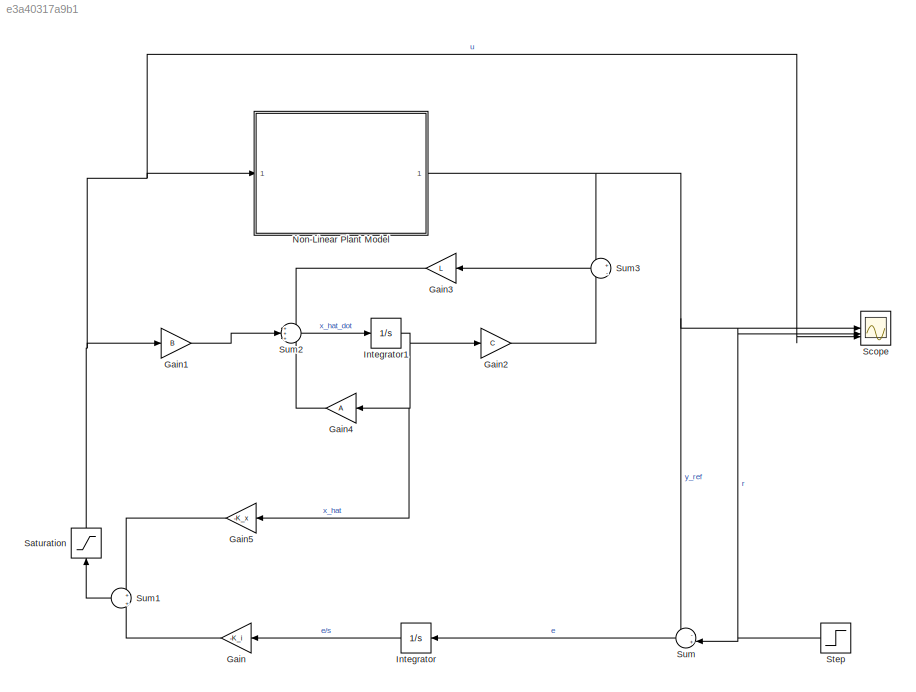
MODEL slx_e3a40317a9b1
KIND model
CONFIG AbsTol = auto
CONFIG EnableMultiTasking = off
CONFIG FixedStep = auto
CONFIG MaxStep = auto
CONFIG MinStep = auto
CONFIG RelTol = 1e-3
CONFIG SampleTimeConstraint = Unconstrained
CONFIG SolverName = VariableStepAuto
CONFIG StartTime = 0.0
CONFIG StopTime = 15
WORKSPACE source: mxarray member
WORKSPACE g = 9.81
WORKSPACE l = 3.7
BLOCK [Gain] Gain
  Gain = -K_i
  Multiplication = Matrix(K*u)
BLOCK [Gain] Gain1
  Gain = B
  Multiplication = Matrix(K*u)
BLOCK [Gain] Gain2
  Gain = C
  Multiplication = Matrix(K*u)
BLOCK [Gain] Gain3
  Gain = L
  Multiplication = Matrix(K*u)
BLOCK [Gain] Gain4
  Gain = A
  Multiplication = Matrix(K*u)
BLOCK [Gain] Gain5
  Gain = -K_x
  Multiplication = Matrix(K*u)
BLOCK [Integrator] Integrator
BLOCK [Integrator] Integrator1
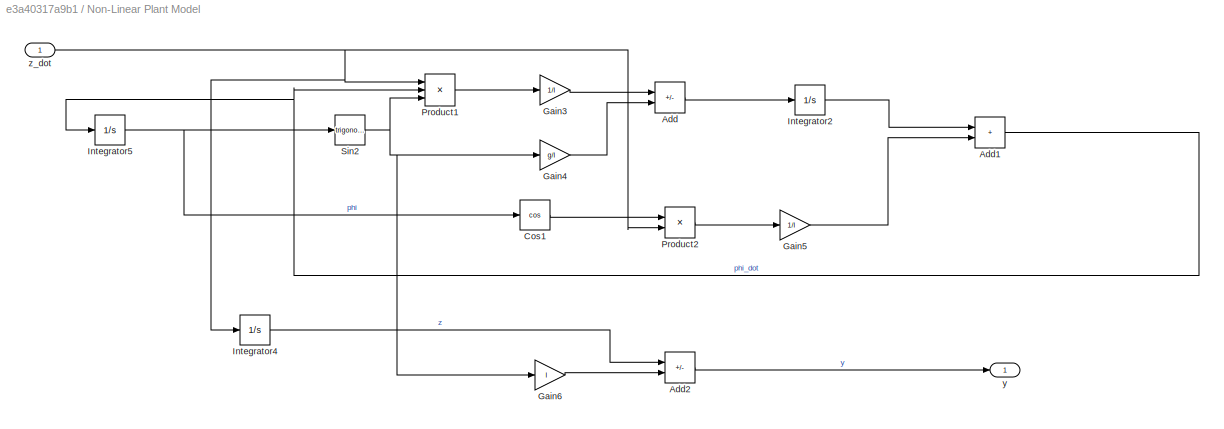
BLOCK [SubSystem] Non-Linear Plant Model
BLOCK [Sum] Non-Linear Plant Model/Add
  IconShape = rectangular
  Inputs = +-
BLOCK [Sum] Non-Linear Plant Model/Add1
  IconShape = rectangular
BLOCK [Sum] Non-Linear Plant Model/Add2
  IconShape = rectangular
  Inputs = +-
BLOCK [Trigonometry] Non-Linear Plant Model/Cos1
  Operator = cos
BLOCK [Gain] Non-Linear Plant Model/Gain3
  Gain = 1/l
BLOCK [Gain] Non-Linear Plant Model/Gain4
  Gain = g/l
BLOCK [Gain] Non-Linear Plant Model/Gain5
  Gain = 1/l
BLOCK [Gain] Non-Linear Plant Model/Gain6
  Gain = l
BLOCK [Integrator] Non-Linear Plant Model/Integrator2
BLOCK [Integrator] Non-Linear Plant Model/Integrator4
BLOCK [Integrator] Non-Linear Plant Model/Integrator5
BLOCK [Product] Non-Linear Plant Model/Product1
  Inputs = 3
BLOCK [Product] Non-Linear Plant Model/Product2
BLOCK [Trigonometry] Non-Linear Plant Model/Sin2
BLOCK [Outport] Non-Linear Plant Model/y
BLOCK [Inport] Non-Linear Plant Model/z_dot
BLOCK [Saturate] Saturation
  LowerLimit = -1
  NameLocation = top
  UpperLimit = 1
BLOCK [Scope] Scope
  Floating = off
  NumInputPorts = 3
  ScopeSpecificationString = Simulink.scopes.TimeScopeBlockCfg('CurrentConfiguration', extmgr.ConfigurationSet(extmgr.Configuration('Core','General UI',true),extmgr.Configuration('Core','Source UI',true),extmgr.Configuration('Sources','WiredSimulink',true),extmgr.Configuration('Visuals','Time Domain',true,'SerializedDisplays',{struct('MinYLimReal','-0.20135','MaxYLimReal','1.13465','YLabelReal','','MinYLimMag','0.00000','MaxY...<+1547ch>
BLOCK [Step] Step
  SampleTime = 0
  Time = 0
BLOCK [Sum] Sum
  Inputs = -+|
  NameLocation = top
BLOCK [Sum] Sum1
  Inputs = +|+
BLOCK [Sum] Sum2
  Inputs = +++
BLOCK [Sum] Sum3
  Inputs = +|-
LINE Gain1:1 -> Sum2:2
LINE Gain2:1 -> Sum3:2
LINE Gain3:1 -> Sum2:1
LINE Gain4:1 -> Sum2:3
LINE Gain5:1 -> Sum1:1
LINE Gain:1 -> Sum1:2
NET Integrator1:1 -> Gain2:1, Gain4:1, Gain5:1
LINE Integrator:1 -> Gain:1
NET Non-Linear Plant Model/Add1:1 -> Non-Linear Plant Model/Integrator5:1, Non-Linear Plant Model/Product1:2
LINE Non-Linear Plant Model/Add2:1 -> Non-Linear Plant Model/y:1
LINE Non-Linear Plant Model/Add:1 -> Non-Linear Plant Model/Integrator2:1
LINE Non-Linear Plant Model/Cos1:1 -> Non-Linear Plant Model/Product2:1
LINE Non-Linear Plant Model/Gain3:1 -> Non-Linear Plant Model/Add:1
LINE Non-Linear Plant Model/Gain4:1 -> Non-Linear Plant Model/Add:2
LINE Non-Linear Plant Model/Gain5:1 -> Non-Linear Plant Model/Add1:2
LINE Non-Linear Plant Model/Gain6:1 -> Non-Linear Plant Model/Add2:2
LINE Non-Linear Plant Model/Integrator2:1 -> Non-Linear Plant Model/Add1:1
LINE Non-Linear Plant Model/Integrator4:1 -> Non-Linear Plant Model/Add2:1
NET Non-Linear Plant Model/Integrator5:1 -> Non-Linear Plant Model/Cos1:1, Non-Linear Plant Model/Sin2:1
LINE Non-Linear Plant Model/Product1:1 -> Non-Linear Plant Model/Gain3:1
LINE Non-Linear Plant Model/Product2:1 -> Non-Linear Plant Model/Gain5:1
NET Non-Linear Plant Model/Sin2:1 -> Non-Linear Plant Model/Gain4:1, Non-Linear Plant Model/Gain6:1, Non-Linear Plant Model/Product1:3
NET Non-Linear Plant Model/z_dot:1 -> Non-Linear Plant Model/Integrator4:1, Non-Linear Plant Model/Product1:1, Non-Linear Plant Model/Product2:2
NET Non-Linear Plant Model:1 -> Scope:1, Sum3:1, Sum:1
NET Saturation:1 -> Gain1:1, Non-Linear Plant Model:1, Scope:3
NET Step:1 -> Scope:2, Sum:2
LINE Sum1:1 -> Saturation:1
LINE Sum2:1 -> Integrator1:1
LINE Sum3:1 -> Gain3:1
LINE Sum:1 -> Integrator:1
note: NET lines group one-source signal fan-out (src -> all destinations, sorted); 1:1 wires keep LINE
